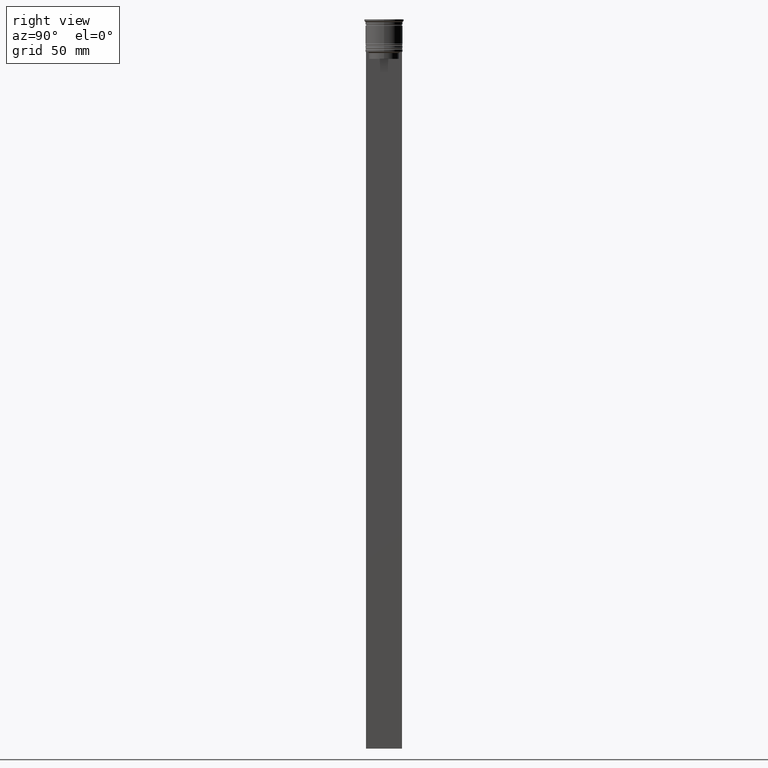
[diagram: clean part render]
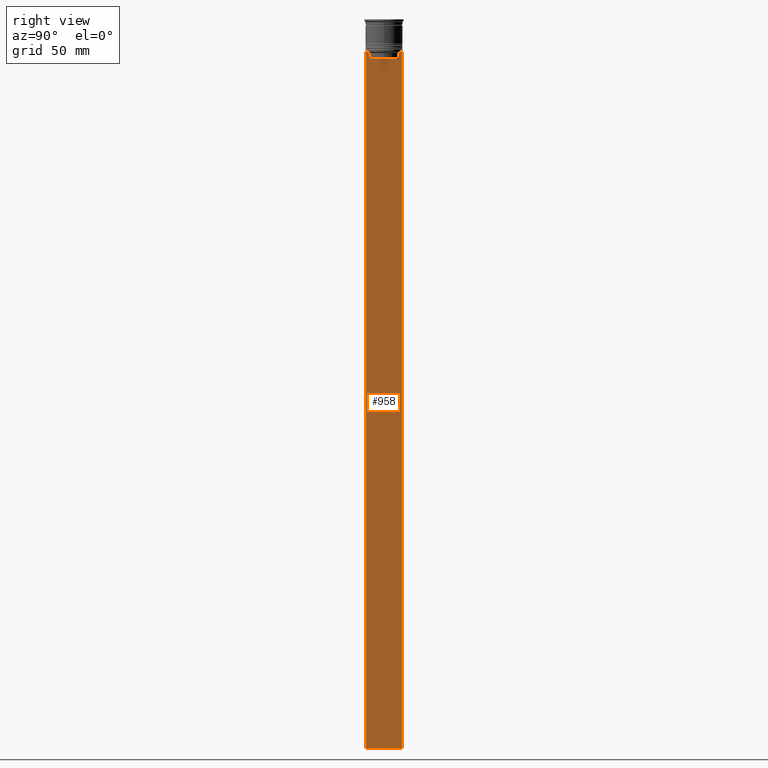
[diagram: same view with one face highlighted and labeled with its STEP entity id]
A machine part, right view. The second image highlights one B-rep face of the part: STEP entity #958.
In plain terms, the highlighted planar face has unit normal (-1, 0, 0).
Its self-contained STEP definition (entity closure, byte-faithful):
#33 = LINE ( 'NONE', #975, #1310 ) ;
#78 = VECTOR ( 'NONE', #2245, 1000.000000000000000 ) ;
#145 = LINE ( 'NONE', #331, #1416 ) ;
#159 = ORIENTED_EDGE ( 'NONE', *, *, #1459, .T. ) ;
#163 = VERTEX_POINT ( 'NONE', #409 ) ;
#194 = ORIENTED_EDGE ( 'NONE', *, *, #2178, .F. ) ;
#200 = ORIENTED_EDGE ( 'NONE', *, *, #1264, .T. ) ;
#204 = EDGE_CURVE ( 'NONE', #1921, #1236, #1022, .T. ) ;
#213 = VERTEX_POINT ( 'NONE', #1764 ) ;
#221 = DIRECTION ( 'NONE',  ( 0.000000000000000000, -1.000000000000000000, 0.000000000000000000 ) ) ;
#247 = CARTESIAN_POINT ( 'NONE',  ( 0.5000000000000001110, -6.380438856379708312, -17.00000000000000000 ) ) ;
#250 = CARTESIAN_POINT ( 'NONE',  ( 0.5000000000000001110, -7.749999999999999112, -14.00000000000000178 ) ) ;
#331 = CARTESIAN_POINT ( 'NONE',  ( 0.5000000000000001110, -7.749999999999999112, 1.532224567009066840 ) ) ;
#394 = EDGE_CURVE ( 'NONE', #731, #1077, #2019, .T. ) ;
#409 = CARTESIAN_POINT ( 'NONE',  ( 0.5000000000000001110, -6.881860213634098500, -14.00000000000000178 ) ) ;
#444 = CARTESIAN_POINT ( 'NONE',  ( 0.5000000000000001110, 6.380438856379708312, 0.000000000000000000 ) ) ;
#454 = ORIENTED_EDGE ( 'NONE', *, *, #394, .T. ) ;
#480 = EDGE_CURVE ( 'NONE', #1236, #163, #1808, .T. ) ;
#488 = FACE_OUTER_BOUND ( 'NONE', #1494, .T. ) ;
#490 = VECTOR ( 'NONE', #550, 1000.000000000000000 ) ;
#507 = DIRECTION ( 'NONE',  ( 0.000000000000000000, 0.000000000000000000, -1.000000000000000000 ) ) ;
#550 = DIRECTION ( 'NONE',  ( 0.000000000000000000, 0.000000000000000000, -1.000000000000000000 ) ) ;
#560 = CARTESIAN_POINT ( 'NONE',  ( 0.5000000000000001110, 6.714736947114692711, -14.16668390704818847 ) ) ;
#623 = AXIS2_PLACEMENT_3D ( 'NONE', #1366, #848, #1214 ) ;
#637 = LINE ( 'NONE', #444, #1274 ) ;
#640 = LINE ( 'NONE', #1371, #490 ) ;
#716 = EDGE_CURVE ( 'NONE', #213, #1266, #33, .T. ) ;
#731 = VERTEX_POINT ( 'NONE', #1567 ) ;
#732 = CARTESIAN_POINT ( 'NONE',  ( 0.5000000000000001110, 6.881860213634098500, -14.00000000000000178 ) ) ;
#761 = LINE ( 'NONE', #770, #78 ) ;
#770 = CARTESIAN_POINT ( 'NONE',  ( 0.5000000000000001110, 6.399999999999999467, -17.00000000000000000 ) ) ;
#848 = DIRECTION ( 'NONE',  ( -1.000000000000000000, 0.000000000000000000, 0.000000000000000000 ) ) ;
#854 = VECTOR ( 'NONE', #221, 1000.000000000000000 ) ;
#860 = CARTESIAN_POINT ( 'NONE',  ( 0.5000000000000001110, -6.547597841511247019, -14.33335192438652150 ) ) ;
#901 = CARTESIAN_POINT ( 'NONE',  ( 0.5000000000000001110, -6.881860213634098500, -14.00000000000000178 ) ) ;
#927 = EDGE_CURVE ( 'NONE', #1572, #731, #1404, .T. ) ;
#931 = LINE ( 'NONE', #250, #854 ) ;
#951 = VECTOR ( 'NONE', #1748, 1000.000000000000000 ) ;
#958 = ADVANCED_FACE ( 'NONE', ( #488 ), #1550, .F. ) ;
#975 = CARTESIAN_POINT ( 'NONE',  ( 0.5000000000000001110, -7.749999999999999112, -314.0000000000000000 ) ) ;
#1013 = CARTESIAN_POINT ( 'NONE',  ( 0.5000000000000001110, -6.380438856379708312, 0.000000000000000000 ) ) ;
#1022 = LINE ( 'NONE', #1013, #1306 ) ;
#1040 = VERTEX_POINT ( 'NONE', #2083 ) ;
#1041 = ORIENTED_EDGE ( 'NONE', *, *, #1573, .T. ) ;
#1077 = VERTEX_POINT ( 'NONE', #1240 ) ;
#1158 = CARTESIAN_POINT ( 'NONE',  ( 0.5000000000000001110, 7.750000000000002665, -14.00000000000000178 ) ) ;
#1214 = DIRECTION ( 'NONE',  ( 0.000000000000000000, 0.000000000000000000, 1.000000000000000000 ) ) ;
#1220 = DIRECTION ( 'NONE',  ( -0.000000000000000000, -0.000000000000000000, 1.000000000000000000 ) ) ;
#1223 = ORIENTED_EDGE ( 'NONE', *, *, #480, .T. ) ;
#1236 = VERTEX_POINT ( 'NONE', #1762 ) ;
#1240 = CARTESIAN_POINT ( 'NONE',  ( 0.5000000000000001110, 6.380438856379708312, -14.50000000000000000 ) ) ;
#1264 = EDGE_CURVE ( 'NONE', #1077, #2309, #637, .T. ) ;
#1266 = VERTEX_POINT ( 'NONE', #1881 ) ;
#1274 = VECTOR ( 'NONE', #1896, 1000.000000000000000 ) ;
#1306 = VECTOR ( 'NONE', #1220, 1000.000000000000000 ) ;
#1310 = VECTOR ( 'NONE', #1518, 1000.000000000000000 ) ;
#1366 = CARTESIAN_POINT ( 'NONE',  ( 0.5000000000000001110, -7.749999999999999112, 1.532224567009066840 ) ) ;
#1371 = CARTESIAN_POINT ( 'NONE',  ( 0.5000000000000001110, 7.750000000000002665, 1.532224567009066840 ) ) ;
#1404 = LINE ( 'NONE', #1946, #951 ) ;
#1416 = VECTOR ( 'NONE', #507, 1000.000000000000000 ) ;
#1459 = EDGE_CURVE ( 'NONE', #2309, #1921, #761, .T. ) ;
#1494 = EDGE_LOOP ( 'NONE', ( #1800, #454, #200, #159, #1548, #1223, #1041, #1725, #1583, #194 ) ) ;
#1518 = DIRECTION ( 'NONE',  ( 0.000000000000000000, 1.000000000000000000, 0.000000000000000000 ) ) ;
#1548 = ORIENTED_EDGE ( 'NONE', *, *, #204, .T. ) ;
#1550 = PLANE ( 'NONE',  #623 ) ;
#1567 = CARTESIAN_POINT ( 'NONE',  ( 0.5000000000000001110, 6.881860213634098500, -14.00000000000000178 ) ) ;
#1572 = VERTEX_POINT ( 'NONE', #1158 ) ;
#1573 = EDGE_CURVE ( 'NONE', #163, #1040, #931, .T. ) ;
#1583 = ORIENTED_EDGE ( 'NONE', *, *, #716, .T. ) ;
#1645 = CARTESIAN_POINT ( 'NONE',  ( 0.5000000000000001110, 6.380438856379708312, -14.50000000000000000 ) ) ;
#1725 = ORIENTED_EDGE ( 'NONE', *, *, #2220, .T. ) ;
#1748 = DIRECTION ( 'NONE',  ( 0.000000000000000000, -1.000000000000000000, 0.000000000000000000 ) ) ;
#1762 = CARTESIAN_POINT ( 'NONE',  ( 0.5000000000000001110, -6.380438856379708312, -14.50000000000000000 ) ) ;
#1764 = CARTESIAN_POINT ( 'NONE',  ( 0.5000000000000001110, -7.749999999999999112, -314.0000000000000000 ) ) ;
#1774 = CARTESIAN_POINT ( 'NONE',  ( 0.5000000000000001110, -6.380438856379708312, -14.50000000000000000 ) ) ;
#1800 = ORIENTED_EDGE ( 'NONE', *, *, #927, .T. ) ;
#1808 = B_SPLINE_CURVE_WITH_KNOTS ( 'NONE', 3,
 ( #1774, #860, #1978, #901 ),
 .UNSPECIFIED., .F., .F.,
 ( 4, 4 ),
 ( 0.02996184199614751464, 0.03067452609193705923 ),
 .UNSPECIFIED. ) ;
#1881 = CARTESIAN_POINT ( 'NONE',  ( 0.5000000000000001110, 7.750000000000002665, -314.0000000000000000 ) ) ;
#1896 = DIRECTION ( 'NONE',  ( 0.000000000000000000, 0.000000000000000000, -1.000000000000000000 ) ) ;
#1921 = VERTEX_POINT ( 'NONE', #247 ) ;
#1946 = CARTESIAN_POINT ( 'NONE',  ( 0.5000000000000001110, -7.749999999999999112, -14.00000000000000178 ) ) ;
#1978 = CARTESIAN_POINT ( 'NONE',  ( 0.5000000000000001110, -6.714736947305993908, -14.16668390685738821 ) ) ;
#2017 = CARTESIAN_POINT ( 'NONE',  ( 0.5000000000000001110, 6.380438856379708312, -17.00000000000000000 ) ) ;
#2019 = B_SPLINE_CURVE_WITH_KNOTS ( 'NONE', 3,
 ( #732, #560, #2191, #1645 ),
 .UNSPECIFIED., .F., .F.,
 ( 4, 4 ),
 ( 0.01172465562756038263, 0.01243276816391822651 ),
 .UNSPECIFIED. ) ;
#2083 = CARTESIAN_POINT ( 'NONE',  ( 0.5000000000000001110, -7.749999999999999112, -14.00000000000000178 ) ) ;
#2178 = EDGE_CURVE ( 'NONE', #1572, #1266, #640, .T. ) ;
#2191 = CARTESIAN_POINT ( 'NONE',  ( 0.5000000000000001110, 6.547597841304911626, -14.33335192459222718 ) ) ;
#2220 = EDGE_CURVE ( 'NONE', #1040, #213, #145, .T. ) ;
#2245 = DIRECTION ( 'NONE',  ( 0.000000000000000000, -1.000000000000000000, 0.000000000000000000 ) ) ;
#2309 = VERTEX_POINT ( 'NONE', #2017 ) ;